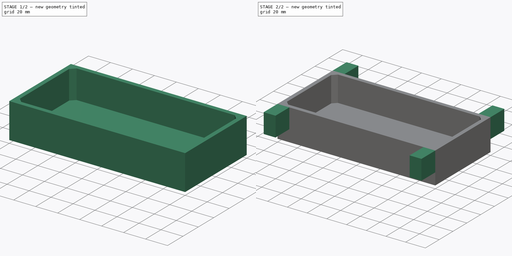
[diagram: build sequence overview — one tinted view per stage of 2, left to right]
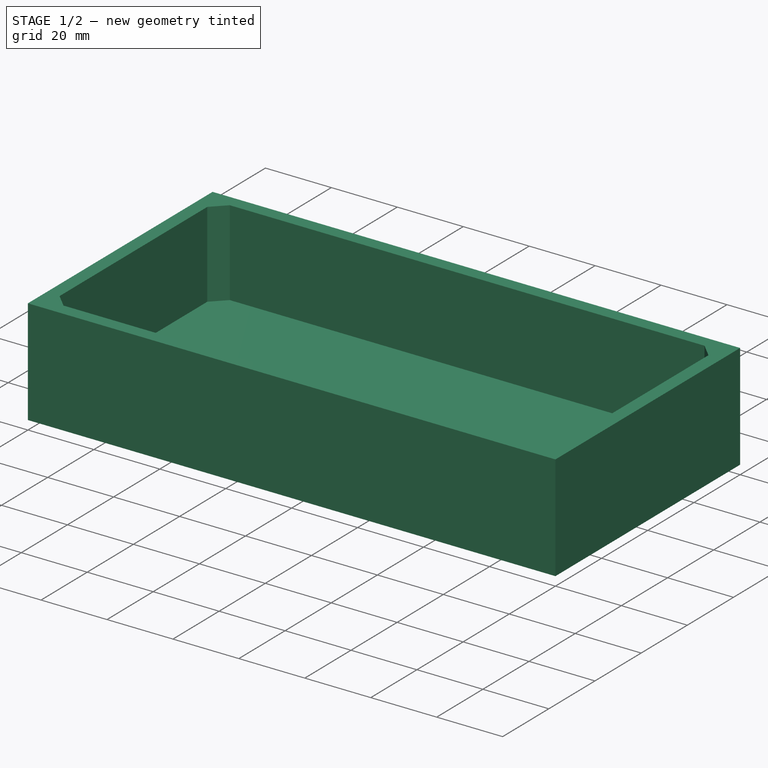
[diagram: stage 1 of 2 — iso view after this stage's code; geometry added in this stage tinted green]
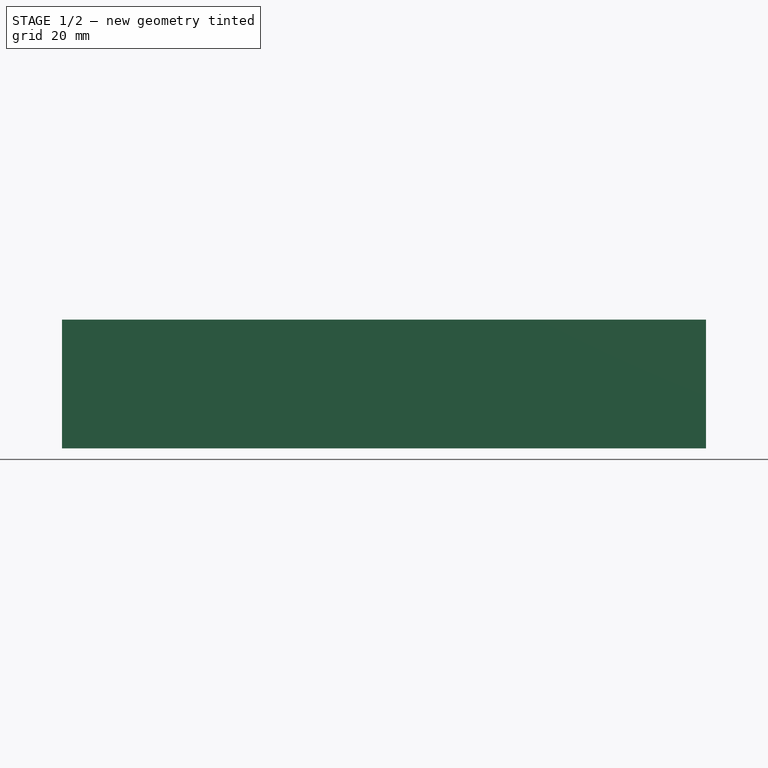
[diagram: stage 1 of 2 — front view after this stage's code; geometry added in this stage tinted green]
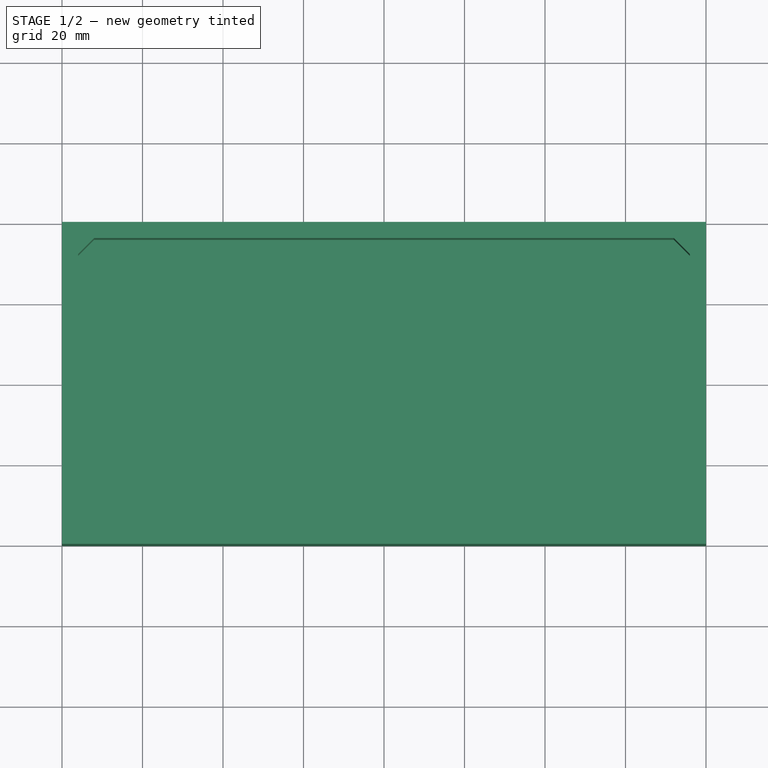
[diagram: stage 1 of 2 — top view after this stage's code; geometry added in this stage tinted green]
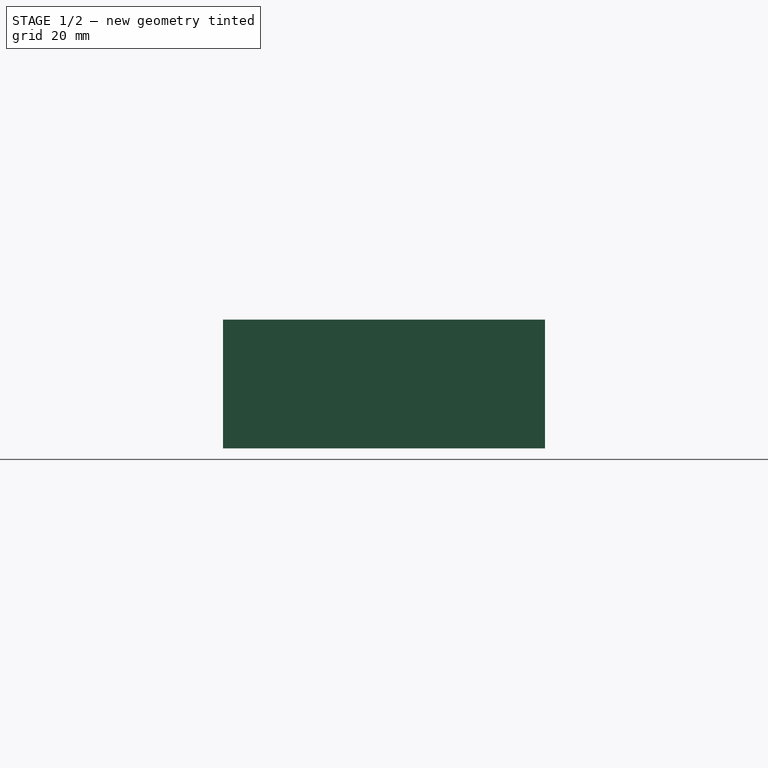
[diagram: stage 1 of 2 — right view after this stage's code; geometry added in this stage tinted green]
FCSTD DOCUMENT  (FreeCAD 0.17R9796 (Git))
Label: ifmountNG_lashes
License: All rights reserved
LicenseURL: http://en.wikipedia.org/wiki/All_rights_reserved
objects: Sketcher::SketchObject×4, PartDesign::Pad×3, PartDesign::Pocket×1, PartDesign::Body×1
note: 13 computed .brp shape members not serialized (recipe doc carries the construction recipe); baked Part::Feature solids carry a one-line shape summary decoded from their .brp

FEATURE [Sketcher::SketchObject] Sketch
  MapMode = 5
  Support = -> [XY_Plane]
  sketch-geometry (4):
    g0: LineSegment StartX=0 StartY=80 StartZ=0 EndX=160 EndY=80 EndZ=0
    g1: LineSegment StartX=160 StartY=80 StartZ=0 EndX=160 EndY=0 EndZ=0
    g2: LineSegment StartX=160 StartY=0 StartZ=0 EndX=0 EndY=0 EndZ=0
    g3: LineSegment StartX=0 StartY=0 StartZ=0 EndX=0 EndY=80 EndZ=0
  constraints (11):
    c: Coincident(g0,g1)
    c: Coincident(g1,g2)
    c: Coincident(g2,g3)
    c: Coincident(g3,g0)
    c: Horizontal(g0)
    c: Horizontal(g2)
    c: Vertical(g1)
    c: Vertical(g3)
    c: Coincident(g2,g-1)
    c: DistanceY(g3,g3) = 80
    c: DistanceX(g2,g2) = 160
FEATURE [PartDesign::Pad] Pad
  Length = 32
  Length2 = 100
  Profile = -> Sketch
  Type = 0
FEATURE [Sketcher::SketchObject] Sketch001
  MapMode = 5
  Placement = pos=(0,0,32) rot=(0,0,1;0rad)
  Support = -> [Pad]
  sketch-geometry (8):
    g0: LineSegment StartX=8 StartY=76 StartZ=0 EndX=4 EndY=72 EndZ=0
    g1: LineSegment StartX=4 StartY=72 StartZ=0 EndX=4 EndY=8 EndZ=0
    g2: LineSegment StartX=4 StartY=8 StartZ=0 EndX=8 EndY=4 EndZ=0
    g3: LineSegment StartX=8 StartY=4 StartZ=0 EndX=152 EndY=4 EndZ=0
    g4: LineSegment StartX=152 StartY=4 StartZ=0 EndX=156 EndY=8 EndZ=0
    g5: LineSegment StartX=156 StartY=8 StartZ=0 EndX=156 EndY=72 EndZ=0
    g6: LineSegment StartX=156 StartY=72 StartZ=0 EndX=152 EndY=76 EndZ=0
    g7: LineSegment StartX=152 StartY=76 StartZ=0 EndX=8 EndY=76 EndZ=0
  constraints (24):
    c: Coincident(g0,g1)
    c: Coincident(g1,g2)
    c: Coincident(g2,g3)
    c: Coincident(g3,g4)
    c: Coincident(g4,g5)
    c: Coincident(g5,g6)
    c: Coincident(g6,g7)
    c: Coincident(g7,g0)
    c: Horizontal(g7)
    c: Horizontal(g3)
    c: Vertical(g5)
    c: Vertical(g1)
    c: DistanceY(g1,g1) = 64
    c: Equal(g1,g5)
    c: DistanceX(g7,g7) = 144
    c: Equal(g7,g3)
    c: DistanceY(g-1,g2) = 4
    c: DistanceX(g-1,g1) = 4
    c: DistanceY(g-1,g0) = 72
    c: DistanceY(g0,g0) = 4
    c: DistanceX(g0,g0) = 4
    c: DistanceY(g-1,g4) = 8
    c: DistanceX(g3,g4) = 4
    c: DistanceX(g6,g5) = 4
FEATURE [PartDesign::Pocket] Pocket
  BaseFeature = -> Pad
  Length = 26
  Profile = -> Sketch001
  Type = 0
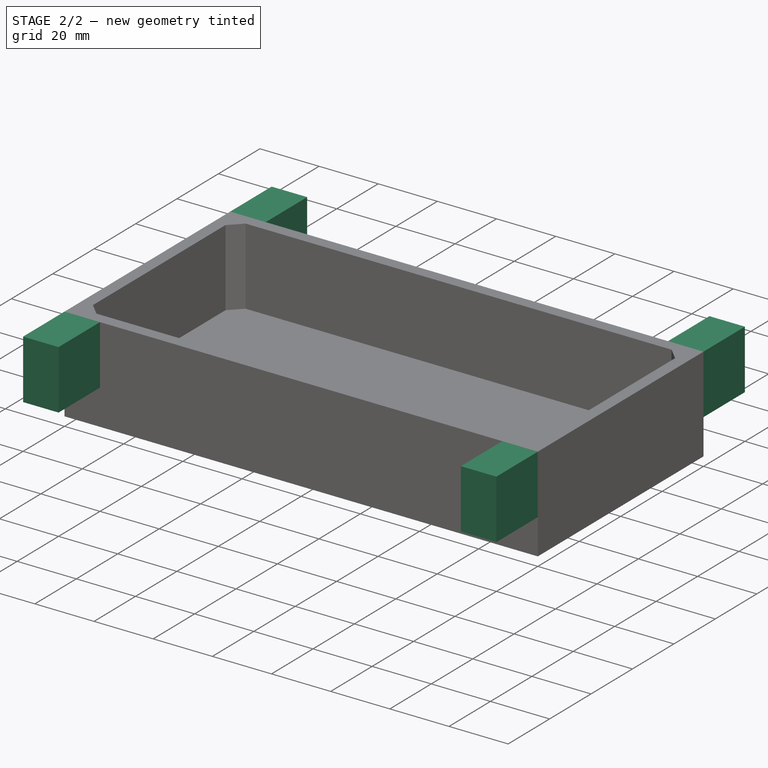
[diagram: stage 2 of 2 — iso view after this stage's code; geometry added in this stage tinted green]
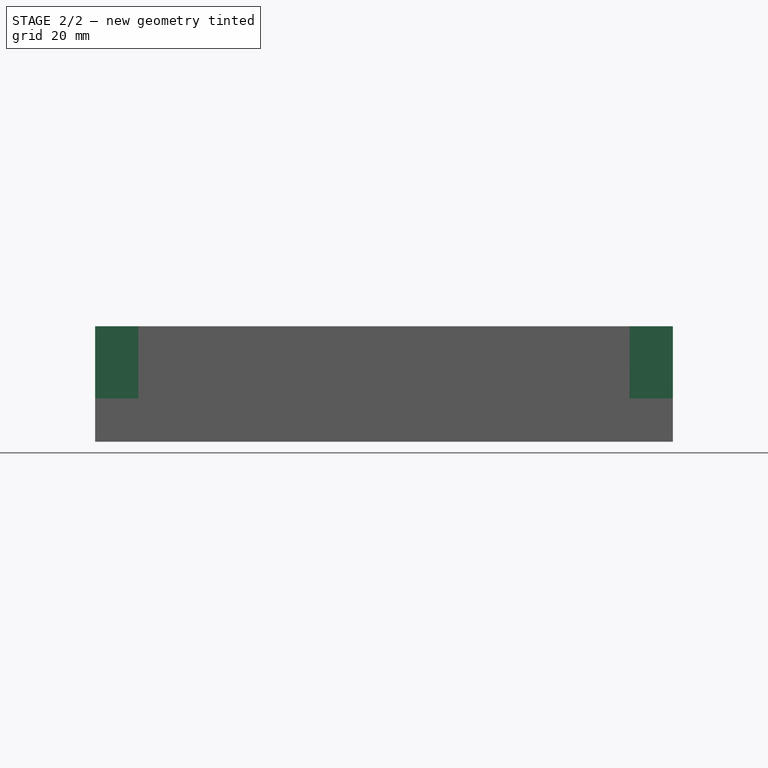
[diagram: stage 2 of 2 — front view after this stage's code; geometry added in this stage tinted green]
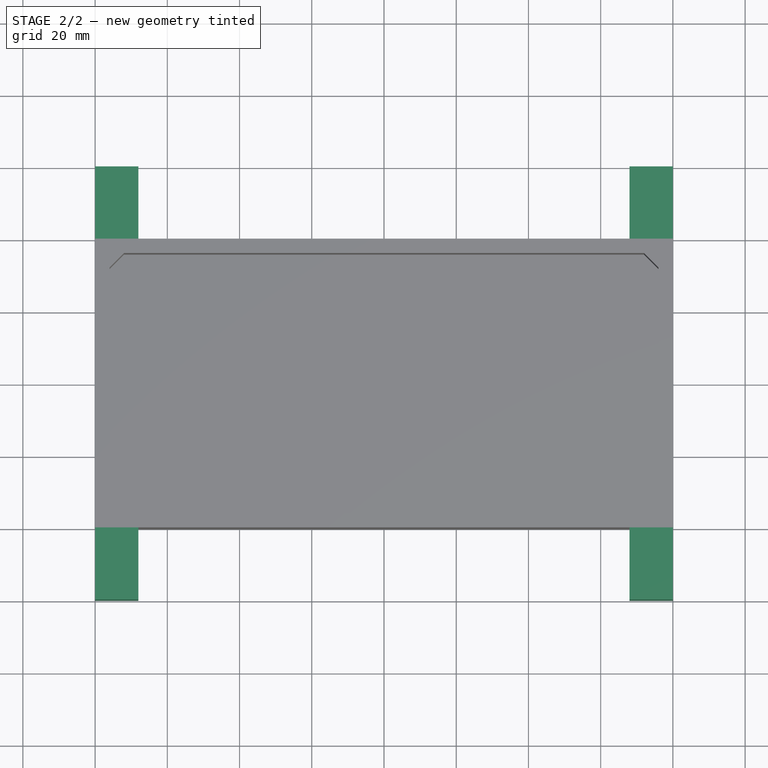
[diagram: stage 2 of 2 — top view after this stage's code; geometry added in this stage tinted green]
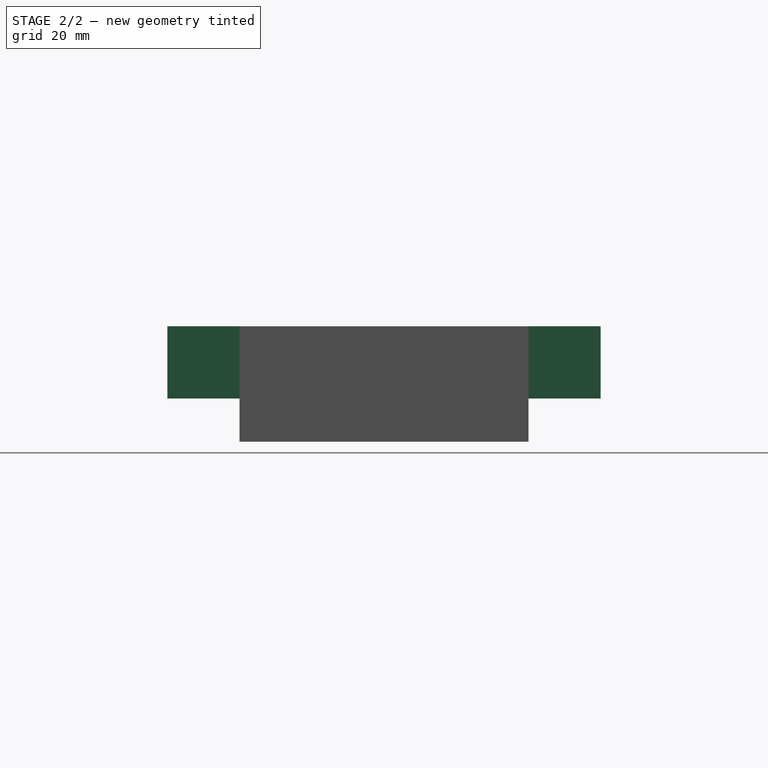
[diagram: stage 2 of 2 — right view after this stage's code; geometry added in this stage tinted green]
FEATURE [Sketcher::SketchObject] Sketch002
  MapMode = 5
  Placement = pos=(0,0,0) rot=(1,0,0;1.5708rad)
  Support = -> [Pocket]
  sketch-geometry (8):
    g0: LineSegment StartX=148 StartY=32 StartZ=0 EndX=160 EndY=32 EndZ=0
    g1: LineSegment StartX=160 StartY=32 StartZ=0 EndX=160 EndY=12 EndZ=0
    g2: LineSegment StartX=160 StartY=12 StartZ=0 EndX=148 EndY=12 EndZ=0
    g3: LineSegment StartX=148 StartY=12 StartZ=0 EndX=148 EndY=32 EndZ=0
    g4: LineSegment StartX=0 StartY=32 StartZ=0 EndX=12 EndY=32 EndZ=0
    g5: LineSegment StartX=12 StartY=32 StartZ=0 EndX=12 EndY=12 EndZ=0
    g6: LineSegment StartX=12 StartY=12 StartZ=0 EndX=0 EndY=12 EndZ=0
    g7: LineSegment StartX=0 StartY=12 StartZ=0 EndX=0 EndY=32 EndZ=0
  constraints (24):
    c: Coincident(g0,g1)
    c: Coincident(g1,g2)
    c: Coincident(g2,g3)
    c: Coincident(g3,g0)
    c: Horizontal(g0)
    c: Horizontal(g2)
    c: Vertical(g1)
    c: Vertical(g3)
    c: DistanceX(g-1,g1) = 160
    c: DistanceX(g2,g1) = 12
    c: DistanceY(g2,g0) = 20
    c: DistanceY(g-1,g2) = 12
    c: Coincident(g4,g5)
    c: Coincident(g5,g6)
    c: Coincident(g6,g7)
    c: Coincident(g7,g4)
    c: Horizontal(g4)
    c: Horizontal(g6)
    c: Vertical(g5)
    c: Vertical(g7)
    c: DistanceY(g6,g4) = 20
    c: DistanceX(g4,g4) = 12
    c: DistanceY(g-1,g6) = 12
    c: DistanceX(g-1,g6) = 0
FEATURE [PartDesign::Pad] Pad001
  BaseFeature = -> Pocket
  Length = 20
  Length2 = 100
  Profile = -> Sketch002
  Type = 0
FEATURE [Sketcher::SketchObject] Sketch003
  MapMode = 5
  Placement = pos=(0,80,0) rot=(0,0.707107,0.707107;3.14159rad)
  Support = -> [Pad001]
  sketch-geometry (8):
    g0: LineSegment StartX=-160 StartY=32 StartZ=0 EndX=-148 EndY=32 EndZ=0
    g1: LineSegment StartX=-148 StartY=32 StartZ=0 EndX=-148 EndY=12 EndZ=0
    g2: LineSegment StartX=-148 StartY=12 StartZ=0 EndX=-160 EndY=12 EndZ=0
    g3: LineSegment StartX=-160 StartY=12 StartZ=0 EndX=-160 EndY=32 EndZ=0
    g4: LineSegment StartX=-12 StartY=32 StartZ=0 EndX=0 EndY=32 EndZ=0
    g5: LineSegment StartX=0 StartY=32 StartZ=0 EndX=0 EndY=12 EndZ=0
    g6: LineSegment StartX=0 StartY=12 StartZ=0 EndX=-12 EndY=12 EndZ=0
    g7: LineSegment StartX=-12 StartY=12 StartZ=0 EndX=-12 EndY=32 EndZ=0
  constraints (24):
    c: Coincident(g0,g1)
    c: Coincident(g1,g2)
    c: Coincident(g2,g3)
    c: Coincident(g3,g0)
    c: Horizontal(g0)
    c: Horizontal(g2)
    c: Vertical(g1)
    c: Vertical(g3)
    c: Coincident(g4,g5)
    c: Coincident(g5,g6)
    c: Coincident(g6,g7)
    c: Coincident(g7,g4)
    c: Horizontal(g4)
    c: Horizontal(g6)
    c: Vertical(g5)
    c: Vertical(g7)
    c: DistanceX(g4,g4) = 12
    c: DistanceY(g7,g7) = 20
    c: DistanceX(g0,g0) = 12
    c: DistanceY(g1,g1) = 20
    c: DistanceY(g-1,g5) = 12
    c: DistanceY(g-1,g1) = 12
    c: DistanceX(g5,g-1) = 0
    c: DistanceX(g2,g-1) = 160
FEATURE [PartDesign::Pad] Pad002
  BaseFeature = -> Pad001
  Length = 20
  Length2 = 100
  Profile = -> Sketch003
  Type = 0
FEATURE [PartDesign::Body] Body
  Group = -> [Sketch,Pad,Sketch001,Pocket,Sketch002,Pad001,Sketch003,Pad002]
  Origin = -> BodyOrigin
  Tip = -> Pad002
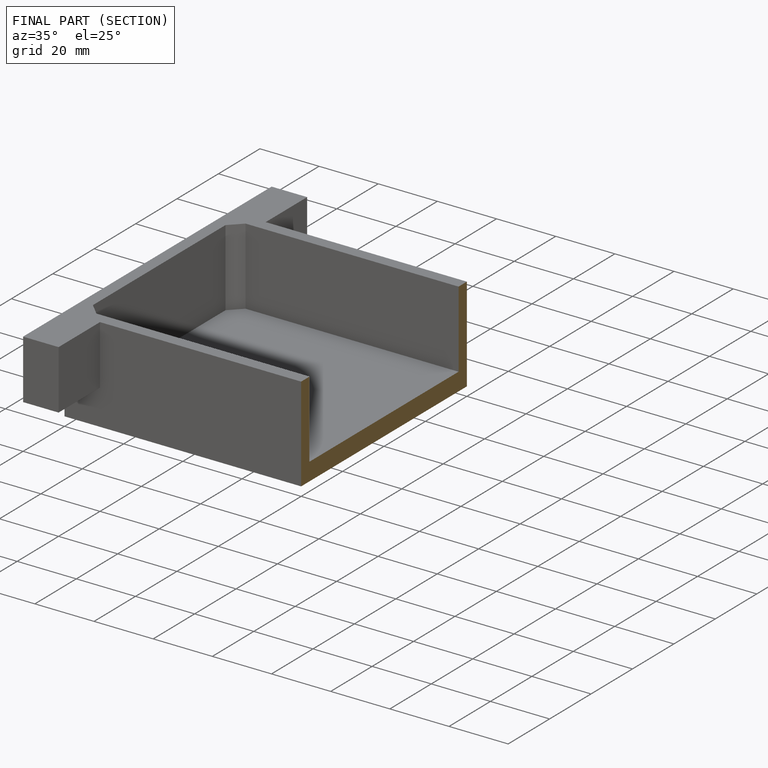
[diagram: finished part — half-section view (interior)]
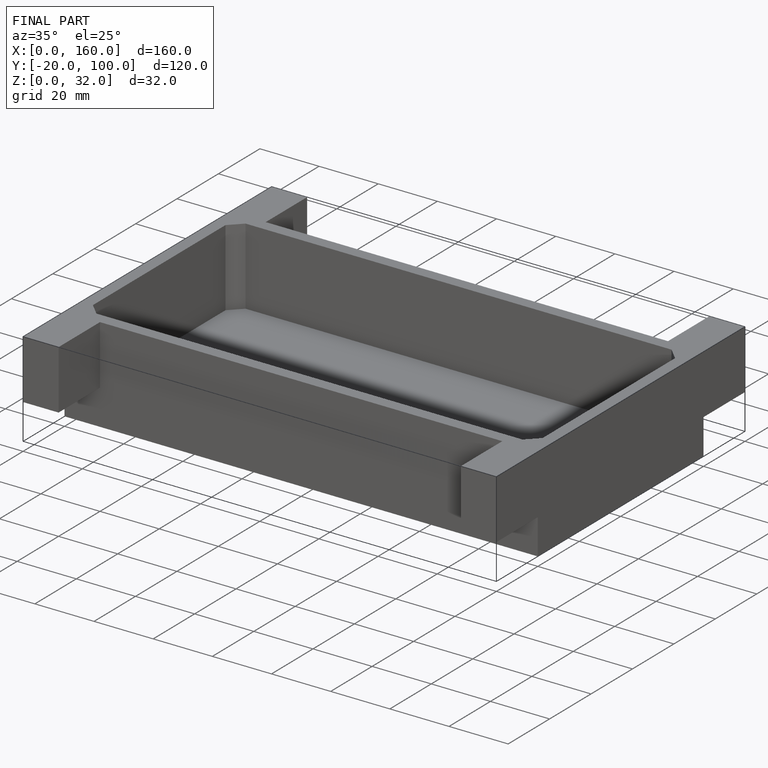
[diagram: finished part — iso view with bounding-box wireframe]
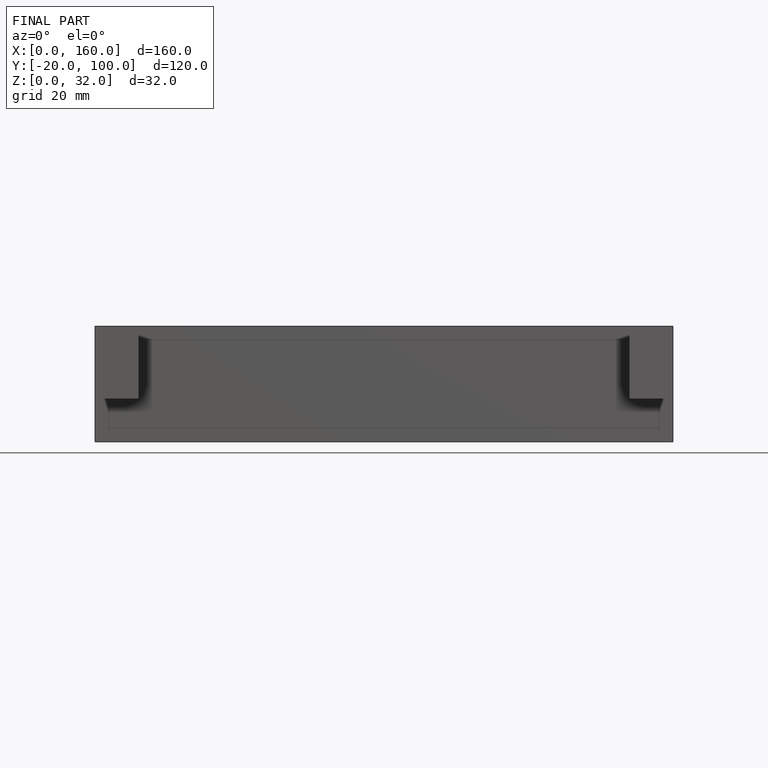
[diagram: finished part — front view with bounding-box wireframe]
